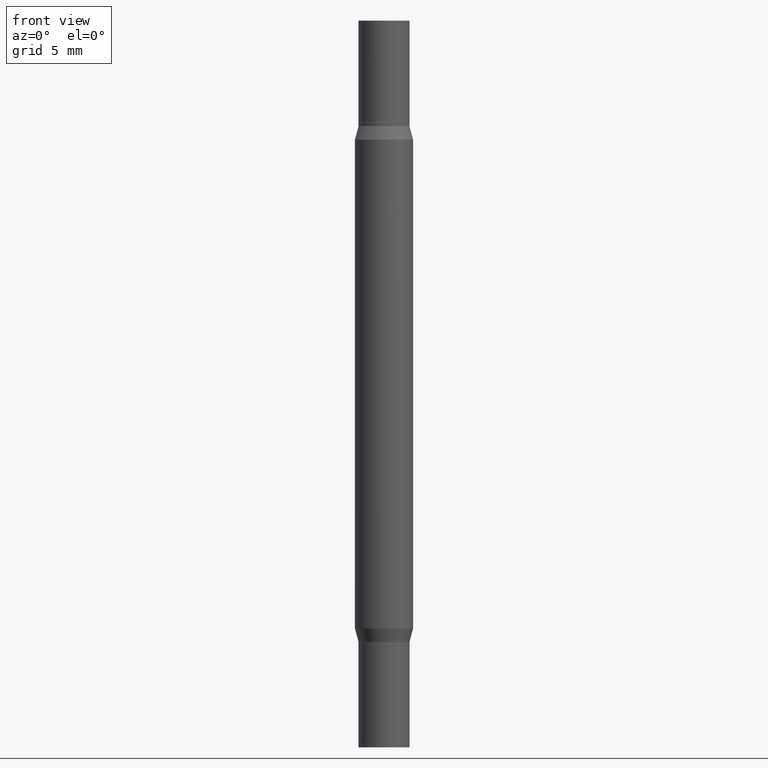
[diagram: clean part render]
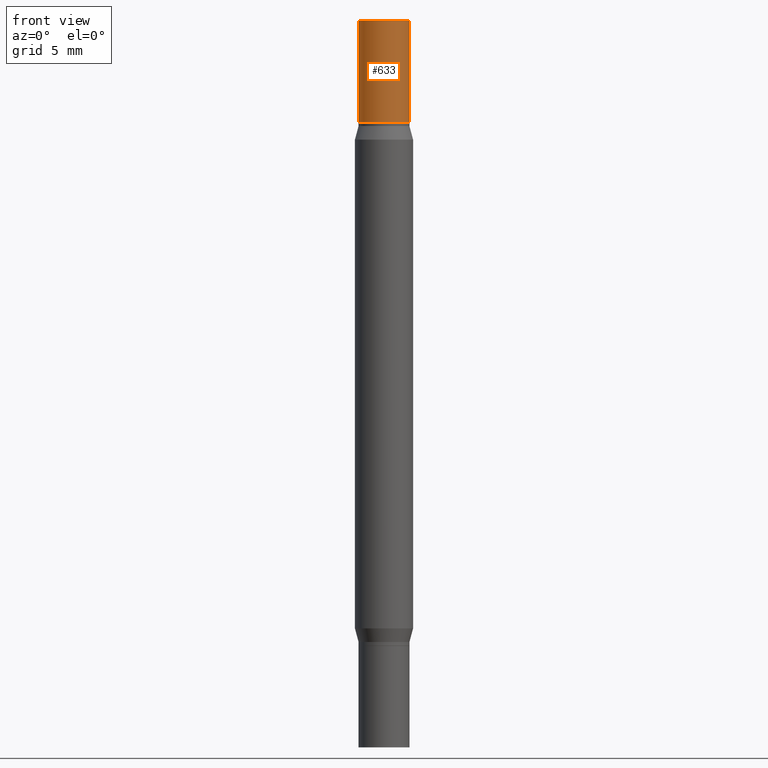
[diagram: same view with one face highlighted and labeled with its STEP entity id]
A machine part, front view. The second image highlights one B-rep face of the part: STEP entity #633.
In plain terms, the highlighted cylindrical surface (edge-blend (fillet) strip) has radius 1.7501 mm, axis along (-0, -0, -1).
Its self-contained STEP definition (entity closure, byte-faithful):
#96 = ORIENTED_EDGE ( 'NONE', *, *, #457, .T. ) ;
#109 = DIRECTION ( 'NONE',  ( 2.445468806185136597E-29, 3.491805094961124077E-15, 1.000000000000000000 ) ) ;
#112 = DIRECTION ( 'NONE',  ( 1.000000000000000000, -6.982962677686265922E-15, 0.000000000000000000 ) ) ;
#146 = DIRECTION ( 'NONE',  ( -2.445468806185136597E-29, -3.491805094961124077E-15, -1.000000000000000000 ) ) ;
#168 = ORIENTED_EDGE ( 'NONE', *, *, #325, .F. ) ;
#196 = CARTESIAN_POINT ( 'NONE',  ( 0.06890000000000007230, -1.443148955704749777E-15, -0.2755999999999999006 ) ) ;
#206 = CYLINDRICAL_SURFACE ( 'NONE', #565, 0.06890000000000007230 ) ;
#214 = VECTOR ( 'NONE', #941, 39.37007874015748143 ) ;
#275 = DIRECTION ( 'NONE',  ( 1.000000000000000000, -6.982962677686258822E-15, 0.000000000000000000 ) ) ;
#285 = CIRCLE ( 'NONE', #366, 0.06890000000000007230 ) ;
#305 = ORIENTED_EDGE ( 'NONE', *, *, #694, .F. ) ;
#307 = EDGE_CURVE ( 'NONE', #557, #953, #285, .T. ) ;
#324 = EDGE_LOOP ( 'NONE', ( #305, #96, #912, #168 ) ) ;
#325 = EDGE_CURVE ( 'NONE', #524, #953, #624, .T. ) ;
#335 = DIRECTION ( 'NONE',  ( 1.000000000000000000, -6.982962677686265922E-15, 0.000000000000000000 ) ) ;
#346 = CARTESIAN_POINT ( 'NONE',  ( -0.06890000000000007230, -8.163773080062737161E-18, -0.2755999999999999006 ) ) ;
#357 = CARTESIAN_POINT ( 'NONE',  ( -0.06890000000000007230, -8.163773080062677072E-18, 2.731847993664279982E-16 ) ) ;
#366 = AXIS2_PLACEMENT_3D ( 'NONE', #705, #469, #112 ) ;
#383 = CIRCLE ( 'NONE', #475, 0.06890000000000007230 ) ;
#457 = EDGE_CURVE ( 'NONE', #793, #557, #539, .T. ) ;
#469 = DIRECTION ( 'NONE',  ( 2.445468806185136597E-29, 3.491805094961124077E-15, 1.000000000000000000 ) ) ;
#475 = AXIS2_PLACEMENT_3D ( 'NONE', #714, #109, #335 ) ;
#481 = CARTESIAN_POINT ( 'NONE',  ( 0.000000000000000000, -6.873299672471851415E-15, -1.968499999999999694 ) ) ;
#524 = VERTEX_POINT ( 'NONE', #769 ) ;
#539 = LINE ( 'NONE', #763, #879 ) ;
#557 = VERTEX_POINT ( 'NONE', #346 ) ;
#565 = AXIS2_PLACEMENT_3D ( 'NONE', #481, #146, #275 ) ;
#624 = LINE ( 'NONE', #701, #214 ) ;
#633 = ADVANCED_FACE ( 'NONE', ( #792 ), #206, .T. ) ;
#694 = EDGE_CURVE ( 'NONE', #793, #524, #383, .T. ) ;
#701 = CARTESIAN_POINT ( 'NONE',  ( 0.06890000000000007230, -7.354425800964435942E-15, -1.968499999999999694 ) ) ;
#705 = CARTESIAN_POINT ( 'NONE',  ( 4.139934141990817236E-29, -9.620228272121656440E-16, -0.2755999999999999006 ) ) ;
#714 = CARTESIAN_POINT ( 'NONE',  ( 4.813905344975441835E-29, 3.186569591213228268E-19, 2.731847993664263218E-16 ) ) ;
#763 = CARTESIAN_POINT ( 'NONE',  ( -0.06890000000000007230, -6.400611360425392691E-15, -1.968499999999999694 ) ) ;
#769 = CARTESIAN_POINT ( 'NONE',  ( 0.06890000000000007230, -4.808074715334629460E-16, 2.731847993664263218E-16 ) ) ;
#792 = FACE_OUTER_BOUND ( 'NONE', #324, .T. ) ;
#793 = VERTEX_POINT ( 'NONE', #357 ) ;
#853 = DIRECTION ( 'NONE',  ( -2.445468806185136877E-29, -3.491805094961123683E-15, -1.000000000000000000 ) ) ;
#879 = VECTOR ( 'NONE', #853, 39.37007874015748143 ) ;
#912 = ORIENTED_EDGE ( 'NONE', *, *, #307, .T. ) ;
#941 = DIRECTION ( 'NONE',  ( -2.445468806185136877E-29, -3.491805094961123683E-15, -1.000000000000000000 ) ) ;
#953 = VERTEX_POINT ( 'NONE', #196 ) ;